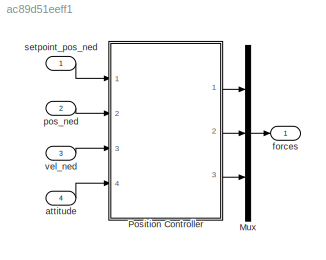
MODEL slx_ac89d51eeff1
KIND model
CONFIG AbsTol = auto
CONFIG EnableMultiTasking = on
CONFIG FixedStep = sample_time
CONFIG InitFcn = Parameters_physical_tiltrotor\nParameters_controllers_tiltrotor
CONFIG MaxStep = auto
CONFIG MinStep = auto
CONFIG RelTol = 1e-3
CONFIG SampleTimeConstraint = Unconstrained
CONFIG Solver = ode2
CONFIG SolverName = ode2
CONFIG StartTime = 0.0
CONFIG StopTime = 10.0
BLOCK [Mux] Mux
  DisplayOption = bar
  Inputs = 3
  Ports = [3, 1]
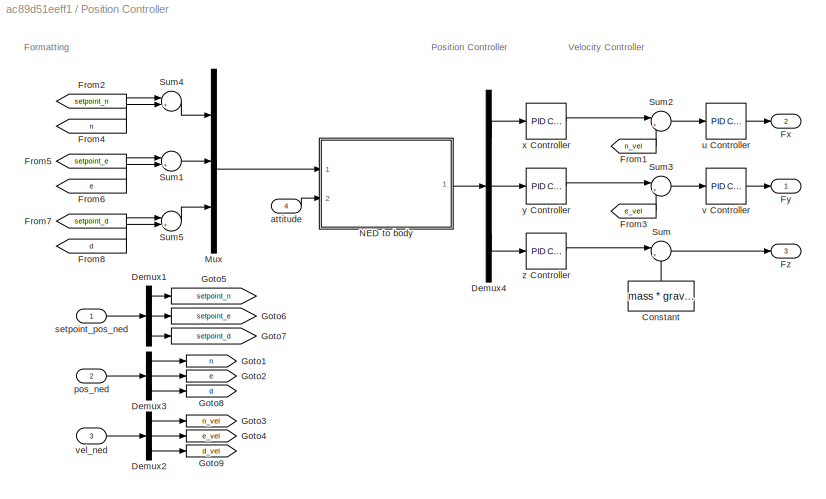
BLOCK [SubSystem] Position Controller
  Ports = [4, 3]
  RequestExecContextInheritance = off
  Variant = off
BLOCK [Constant] Position Controller/Constant
  Value = mass * gravity
BLOCK [Demux] Position Controller/Demux1
  DisplayOption = bar
  Outputs = 3
  Ports = [1, 3]
BLOCK [Demux] Position Controller/Demux2
  DisplayOption = bar
  Outputs = 3
  Ports = [1, 3]
BLOCK [Demux] Position Controller/Demux3
  DisplayOption = bar
  Outputs = 3
  Ports = [1, 3]
BLOCK [Demux] Position Controller/Demux4
  DisplayOption = bar
  Outputs = 3
  Ports = [1, 3]
BLOCK [From] Position Controller/From1
  GotoTag = n_vel
BLOCK [From] Position Controller/From2
  GotoTag = setpoint_n
BLOCK [From] Position Controller/From3
  GotoTag = e_vel
BLOCK [From] Position Controller/From4
  GotoTag = n
BLOCK [From] Position Controller/From5
  GotoTag = setpoint_e
BLOCK [From] Position Controller/From6
  GotoTag = e
BLOCK [From] Position Controller/From7
  GotoTag = setpoint_d
BLOCK [From] Position Controller/From8
  GotoTag = d
BLOCK [Outport] Position Controller/Fx
  IconDisplay = Port number
  Port = 2
  PortDimensions = 1
BLOCK [Outport] Position Controller/Fy
  IconDisplay = Port number
  PortDimensions = 1
BLOCK [Outport] Position Controller/Fz
  IconDisplay = Port number
  Port = 3
BLOCK [Goto] Position Controller/Goto1
  GotoTag = n
BLOCK [Goto] Position Controller/Goto2
  GotoTag = e
BLOCK [Goto] Position Controller/Goto3
  GotoTag = n_vel
BLOCK [Goto] Position Controller/Goto4
  GotoTag = e_vel
BLOCK [Goto] Position Controller/Goto5
  GotoTag = setpoint_n
BLOCK [Goto] Position Controller/Goto6
  GotoTag = setpoint_e
BLOCK [Goto] Position Controller/Goto7
  GotoTag = setpoint_d
BLOCK [Goto] Position Controller/Goto8
  GotoTag = d
BLOCK [Goto] Position Controller/Goto9
  Commented = on
  GotoTag = d_vel
BLOCK [Mux] Position Controller/Mux
  DisplayOption = bar
  Inputs = 3
  Ports = [3, 1]
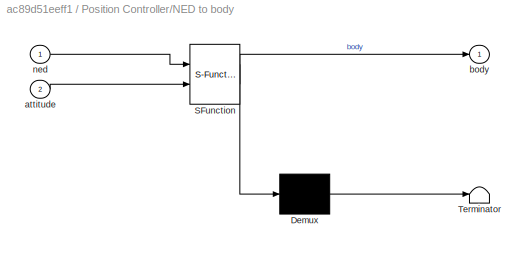
BLOCK [SubSystem] Position Controller/NED to body
  ErrorFcn = Stateflow.Translate.translate
  PermitHierarchicalResolution = ExplicitOnly
  Ports = [2, 1]
  RequestExecContextInheritance = off
  SFBlockType = MATLAB Function
  TreatAsAtomicUnit = on
  Variant = off
BLOCK [Demux] Position Controller/NED to body/ Demux 
  Outputs = 1
  Ports = [1, 1]
BLOCK [S-Function] Position Controller/NED to body/ SFunction 
  EnableBusSupport = on
  FunctionName = sf_sfun
  PortCounts = [2 2]
  Ports = [2, 2]
  SFcnIsStateOwnerBlock = off
  SFunctionDeploymentMode = off
  Tag = Stateflow S-Function Position 9
BLOCK [Terminator] Position Controller/NED to body/ Terminator 
BLOCK [Inport] Position Controller/NED to body/attitude
  IconDisplay = Port number
  Port = 2
BLOCK [Outport] Position Controller/NED to body/body
  IconDisplay = Port number
BLOCK [Inport] Position Controller/NED to body/ned
  IconDisplay = Port number
BLOCK [Sum] Position Controller/Sum
  IconShape = round
  InputSameDT = off
  Inputs = |+-
  OutDataTypeStr = Inherit: Inherit via internal rule
  Ports = [2, 1]
  SaturateOnIntegerOverflow = off
BLOCK [Sum] Position Controller/Sum1
  IconShape = round
  InputSameDT = off
  Inputs = |+-
  OutDataTypeStr = Inherit: Inherit via internal rule
  Ports = [2, 1]
  SaturateOnIntegerOverflow = off
BLOCK [Sum] Position Controller/Sum2
  IconShape = round
  InputSameDT = off
  Inputs = |+-
  OutDataTypeStr = Inherit: Inherit via internal rule
  Ports = [2, 1]
  SaturateOnIntegerOverflow = off
BLOCK [Sum] Position Controller/Sum3
  IconShape = round
  InputSameDT = off
  Inputs = |+-
  OutDataTypeStr = Inherit: Inherit via internal rule
  Ports = [2, 1]
  SaturateOnIntegerOverflow = off
BLOCK [Sum] Position Controller/Sum4
  IconShape = round
  InputSameDT = off
  Inputs = |+-
  OutDataTypeStr = Inherit: Inherit via internal rule
  Ports = [2, 1]
  SaturateOnIntegerOverflow = off
BLOCK [Sum] Position Controller/Sum5
  IconShape = round
  InputSameDT = off
  Inputs = |+-
  OutDataTypeStr = Inherit: Inherit via internal rule
  Ports = [2, 1]
  SaturateOnIntegerOverflow = off
BLOCK [Inport] Position Controller/attitude
  IconDisplay = Port number
  Port = 4
  PortDimensions = 3
BLOCK [Inport] Position Controller/pos_ned
  IconDisplay = Port number
  Port = 2
  PortDimensions = 3
BLOCK [Inport] Position Controller/setpoint_pos_ned
  IconDisplay = Port number
  PortDimensions = 3
BLOCK [Reference] Position Controller/u Controller  REF=simulink/Continuous/PID Controller
  Ports = [1, 1]
  SourceBlock = simulink/Continuous/PID Controller
  SourceType = PID 1dof
BLOCK [Reference] Position Controller/v Controller  REF=simulink/Continuous/PID Controller
  Ports = [1, 1]
  SourceBlock = simulink/Continuous/PID Controller
  SourceType = PID 1dof
BLOCK [Inport] Position Controller/vel_ned
  IconDisplay = Port number
  Port = 3
BLOCK [Reference] Position Controller/x Controller  REF=simulink/Continuous/PID Controller
  Ports = [1, 1]
  SourceBlock = simulink/Continuous/PID Controller
  SourceType = PID 1dof
BLOCK [Reference] Position Controller/y Controller  REF=simulink/Continuous/PID Controller
  Ports = [1, 1]
  SourceBlock = simulink/Continuous/PID Controller
  SourceType = PID 1dof
BLOCK [Reference] Position Controller/z Controller  REF=simulink/Continuous/PID Controller
  Ports = [1, 1]
  SourceBlock = simulink/Continuous/PID Controller
  SourceType = PID 1dof
BLOCK [Inport] attitude
  IconDisplay = Port number
  Port = 4
BLOCK [Outport] forces
  IconDisplay = Port number
BLOCK [Inport] pos_ned
  IconDisplay = Port number
  Port = 2
  PortDimensions = 3
BLOCK [Inport] setpoint_pos_ned
  IconDisplay = Port number
  PortDimensions = 3
BLOCK [Inport] vel_ned
  IconDisplay = Port number
  Port = 3
  PortDimensions = 3
ANNOTATION Position Controller: Formatting
ANNOTATION Position Controller: Position Controller
ANNOTATION Position Controller: Velocity Controller
LINE Mux:1 -> forces:1
LINE Position Controller/Constant:1 -> Position Controller/Sum:2
LINE Position Controller/Demux1:1 -> Position Controller/Goto5:1
LINE Position Controller/Demux1:2 -> Position Controller/Goto6:1
LINE Position Controller/Demux1:3 -> Position Controller/Goto7:1
LINE Position Controller/Demux2:1 -> Position Controller/Goto3:1
LINE Position Controller/Demux2:2 -> Position Controller/Goto4:1
LINE Position Controller/Demux2:3 -> Position Controller/Goto9:1
LINE Position Controller/Demux3:1 -> Position Controller/Goto1:1
LINE Position Controller/Demux3:2 -> Position Controller/Goto2:1
LINE Position Controller/Demux3:3 -> Position Controller/Goto8:1
LINE Position Controller/Demux4:1 -> Position Controller/x Controller:1
LINE Position Controller/Demux4:2 -> Position Controller/y Controller:1
LINE Position Controller/Demux4:3 -> Position Controller/z Controller:1
LINE Position Controller/From1:1 -> Position Controller/Sum2:2
LINE Position Controller/From2:1 -> Position Controller/Sum4:1
LINE Position Controller/From3:1 -> Position Controller/Sum3:2
LINE Position Controller/From4:1 -> Position Controller/Sum4:2
LINE Position Controller/From5:1 -> Position Controller/Sum1:1
LINE Position Controller/From6:1 -> Position Controller/Sum1:2
LINE Position Controller/From7:1 -> Position Controller/Sum5:1
LINE Position Controller/From8:1 -> Position Controller/Sum5:2
LINE Position Controller/Mux:1 -> Position Controller/NED to body:1
LINE Position Controller/NED to body:1 -> Position Controller/Demux4:1
LINE Position Controller/Sum1:1 -> Position Controller/Mux:2
LINE Position Controller/Sum2:1 -> Position Controller/u Controller:1
LINE Position Controller/Sum3:1 -> Position Controller/v Controller:1
LINE Position Controller/Sum4:1 -> Position Controller/Mux:1
LINE Position Controller/Sum5:1 -> Position Controller/Mux:3
LINE Position Controller/Sum:1 -> Position Controller/Fz:1
LINE Position Controller/attitude:1 -> Position Controller/NED to body:2
LINE Position Controller/pos_ned:1 -> Position Controller/Demux3:1
LINE Position Controller/setpoint_pos_ned:1 -> Position Controller/Demux1:1
LINE Position Controller/u Controller:1 -> Position Controller/Fx:1
LINE Position Controller/v Controller:1 -> Position Controller/Fy:1
LINE Position Controller/vel_ned:1 -> Position Controller/Demux2:1
LINE Position Controller/x Controller:1 -> Position Controller/Sum2:1
LINE Position Controller/y Controller:1 -> Position Controller/Sum3:1
LINE Position Controller/z Controller:1 -> Position Controller/Sum:1
LINE Position Controller:1 -> Mux:1
LINE Position Controller:2 -> Mux:2
LINE Position Controller:3 -> Mux:3
LINE attitude:1 -> Position Controller:4
LINE pos_ned:1 -> Position Controller:2
LINE setpoint_pos_ned:1 -> Position Controller:1
LINE vel_ned:1 -> Position Controller:3
CHART Position Controller/NED to body states=1 transitions=1
  STATE_LABEL 'eML_blk_kernel()'
  STATE_LABEL 'SCRIPT:\nfunction body  = ned2body( ned, attitude )\n\nphi = 0;\ntheta = 0;\npsi = attitude(3);\n\nSphi = sin(phi);\nCphi = cos(phi);\nStheta = sin(theta);\nCtheta = cos(theta);\nSpsi = sin(psi);\nCpsi = cos(psi);\n\nned2body = [                 Ctheta*Cpsi,                  Ctheta*Spsi,     -Stheta ;\n            Sphi*Stheta*Cpsi - Cphi*Spsi, Sphi*Stheta*Spsi + Cphi*Cpsi, Sphi*Ctheta ;\n            Cphi*Stheta*C...<+86ch>'
